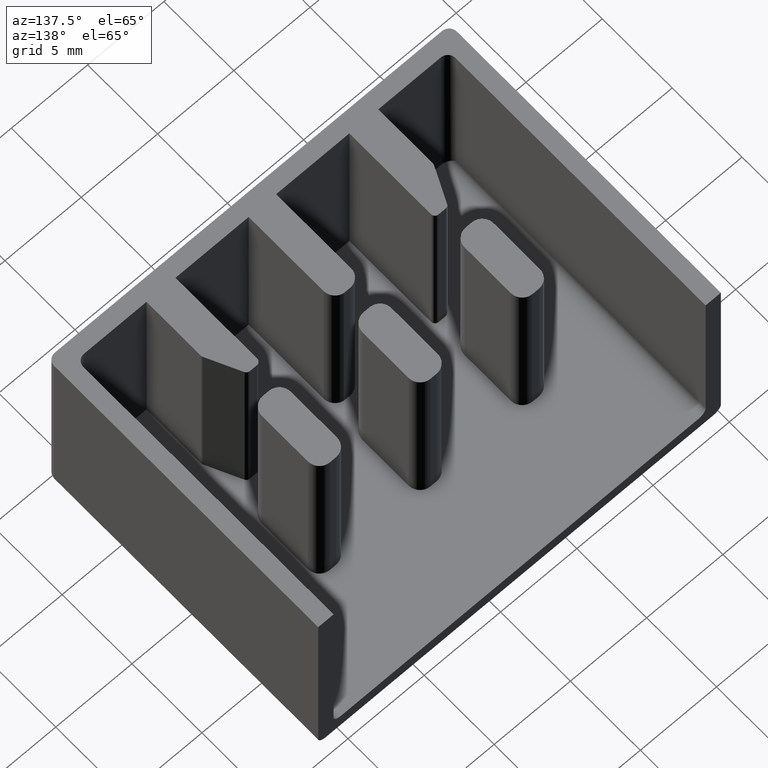
[diagram: clean part render]
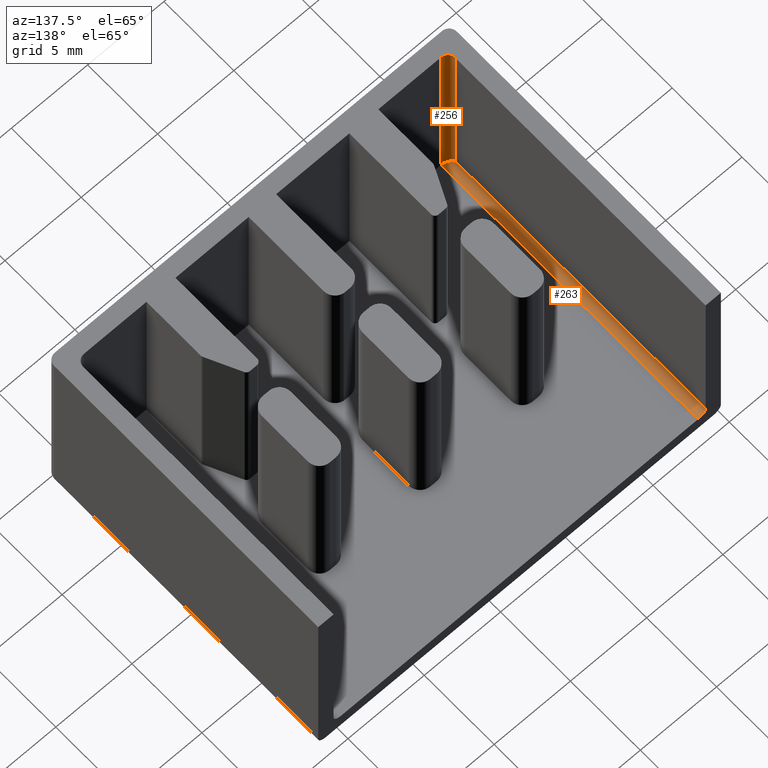
[diagram: same view with one multi-face feature highlighted, each face labeled with its STEP entity id]
A machine part, auxiliary view. The highlighted faces form ONE feature: a constant-radius fillet chain: 2 tangent blend faces with common blend radius 0.5 mm. The faces share edges in the B-rep.
Their STEP definitions:
[1] entity #256 (Cylinder):
#63 = EDGE_CURVE ( 'NONE', #773, #783, #1501, .T. ) ;
#77 = EDGE_CURVE ( 'NONE', #783, #802, #405, .T. ) ;
#110 = EDGE_CURVE ( 'NONE', #817, #773, #1648, .T. ) ;
#145 = EDGE_CURVE ( 'NONE', #802, #817, #685, .T. ) ;
#256 = ADVANCED_FACE ( 'NONE', ( #1948 ), #1925, .F. ) ;
#355 = VECTOR ( 'NONE', #1465, 1000.000000000000000 ) ;
#405 = CIRCLE ( 'NONE', #406, 0.5000000000000000000 ) ;
#406 = AXIS2_PLACEMENT_3D ( 'NONE', #1546, #1548, #1513 ) ;
#434 = VECTOR ( 'NONE', #700, 1000.000000000000000 ) ;
#552 = AXIS2_PLACEMENT_3D ( 'NONE', #1960, #1958, #1934 ) ;
#601 = CARTESIAN_POINT ( 'NONE',  ( 1.000000000000000000, 1.500000000000000000, 1.500000000000000000 ) ) ;
#617 = CARTESIAN_POINT ( 'NONE',  ( 1.207106781186547700, 1.000000000000000900, 1.000000000000000000 ) ) ;
#624 = CARTESIAN_POINT ( 'NONE',  ( 1.000000000000000000, 1.207106781186548300, 1.207106781186547500 ) ) ;
#634 = CARTESIAN_POINT ( 'NONE',  ( 1.500000000000000000, 1.000000000000000900, 1.000000000000000000 ) ) ;
#658 = CARTESIAN_POINT ( 'NONE',  ( 1.000000000000000000, 1.500000000000000000, 0.9999999999999991100 ) ) ;
#685 = LINE ( 'NONE', #658, #434 ) ;
#700 = DIRECTION ( 'NONE',  ( 0.0000000000000000000, 0.0000000000000000000, -1.000000000000000000 ) ) ;
#773 = VERTEX_POINT ( 'NONE', #2021 ) ;
#783 = VERTEX_POINT ( 'NONE', #1963 ) ;
#802 = VERTEX_POINT ( 'NONE', #1969 ) ;
#817 = VERTEX_POINT ( 'NONE', #2039 ) ;
#975 = ORIENTED_EDGE ( 'NONE', *, *, #63, .F. ) ;
#995 = ORIENTED_EDGE ( 'NONE', *, *, #77, .F. ) ;
#1020 = ORIENTED_EDGE ( 'NONE', *, *, #145, .F. ) ;
#1029 = ORIENTED_EDGE ( 'NONE', *, *, #110, .F. ) ;
#1259 = EDGE_LOOP ( 'NONE', ( #995, #975, #1029, #1020 ) ) ;
#1465 = DIRECTION ( 'NONE',  ( -0.0000000000000000000, -0.0000000000000000000, 1.000000000000000000 ) ) ;
#1501 = LINE ( 'NONE', #1506, #355 ) ;
#1506 = CARTESIAN_POINT ( 'NONE',  ( 1.500000000000000000, 1.000000000000000000, 13.30000000000000100 ) ) ;
#1513 = DIRECTION ( 'NONE',  ( -1.000000000000000000, 0.0000000000000000000, 0.0000000000000000000 ) ) ;
#1546 = CARTESIAN_POINT ( 'NONE',  ( 1.500000000000000000, 1.500000000000000000, 13.30000000000000100 ) ) ;
#1548 = DIRECTION ( 'NONE',  ( 0.0000000000000000000, 0.0000000000000000000, -1.000000000000000000 ) ) ;
#1648 =( BOUNDED_CURVE ( )  B_SPLINE_CURVE ( 3, ( #601, #624, #617, #634 ),
 .UNSPECIFIED., .F., .T. ) 
 B_SPLINE_CURVE_WITH_KNOTS ( ( 4, 4 ),
 ( 4.712388980384689700, 6.283185307179586200 ),
 .UNSPECIFIED. ) 
 CURVE ( )  GEOMETRIC_REPRESENTATION_ITEM ( )  RATIONAL_B_SPLINE_CURVE ( ( 1.000000000000000000, 0.8047378541243649400, 0.8047378541243649400, 1.000000000000000000 ) ) 
 REPRESENTATION_ITEM ( '' )  );
#1925 = CYLINDRICAL_SURFACE ( 'NONE', #552, 0.5000000000000000000 ) ;
#1934 = DIRECTION ( 'NONE',  ( 1.000000000000000000, 0.0000000000000000000, 0.0000000000000000000 ) ) ;
#1948 = FACE_OUTER_BOUND ( 'NONE', #1259, .T. ) ;
#1958 = DIRECTION ( 'NONE',  ( 0.0000000000000000000, 0.0000000000000000000, 1.000000000000000000 ) ) ;
#1960 = CARTESIAN_POINT ( 'NONE',  ( 1.500000000000000000, 1.500000000000000000, 13.30000000000000100 ) ) ;
#1963 = CARTESIAN_POINT ( 'NONE',  ( 1.500000000000000000, 1.000000000000000900, 13.30000000000000100 ) ) ;
#1969 = CARTESIAN_POINT ( 'NONE',  ( 1.000000000000000000, 1.500000000000001300, 13.30000000000000100 ) ) ;
#2021 = CARTESIAN_POINT ( 'NONE',  ( 1.500000000000000000, 1.000000000000000900, 1.000000000000000000 ) ) ;
#2039 = CARTESIAN_POINT ( 'NONE',  ( 1.000000000000000000, 1.500000000000000000, 1.500000000000000000 ) ) ;
[2] entity #263 (Cylinder):
#18 = EDGE_CURVE ( 'NONE', #779, #773, #1380, .T. ) ;
#104 = EDGE_CURVE ( 'NONE', #821, #779, #397, .T. ) ;
#110 = EDGE_CURVE ( 'NONE', #817, #773, #1648, .T. ) ;
#159 = EDGE_CURVE ( 'NONE', #817, #821, #2150, .T. ) ;
#263 = ADVANCED_FACE ( 'NONE', ( #1908 ), #1920, .F. ) ;
#278 = VECTOR ( 'NONE', #1355, 1000.000000000000000 ) ;
#359 = AXIS2_PLACEMENT_3D ( 'NONE', #1634, #1632, #1612 ) ;
#397 = CIRCLE ( 'NONE', #359, 0.5000000000000000000 ) ;
#460 = VECTOR ( 'NONE', #2130, 1000.000000000000000 ) ;
#580 = AXIS2_PLACEMENT_3D ( 'NONE', #1928, #1909, #1926 ) ;
#601 = CARTESIAN_POINT ( 'NONE',  ( 1.000000000000000000, 1.500000000000000000, 1.500000000000000000 ) ) ;
#617 = CARTESIAN_POINT ( 'NONE',  ( 1.207106781186547700, 1.000000000000000900, 1.000000000000000000 ) ) ;
#624 = CARTESIAN_POINT ( 'NONE',  ( 1.000000000000000000, 1.207106781186548300, 1.207106781186547500 ) ) ;
#634 = CARTESIAN_POINT ( 'NONE',  ( 1.500000000000000000, 1.000000000000000900, 1.000000000000000000 ) ) ;
#773 = VERTEX_POINT ( 'NONE', #2021 ) ;
#779 = VERTEX_POINT ( 'NONE', #1983 ) ;
#817 = VERTEX_POINT ( 'NONE', #2039 ) ;
#821 = VERTEX_POINT ( 'NONE', #2074 ) ;
#982 = ORIENTED_EDGE ( 'NONE', *, *, #18, .F. ) ;
#1014 = ORIENTED_EDGE ( 'NONE', *, *, #159, .F. ) ;
#1033 = ORIENTED_EDGE ( 'NONE', *, *, #110, .T. ) ;
#1040 = ORIENTED_EDGE ( 'NONE', *, *, #104, .F. ) ;
#1240 = EDGE_LOOP ( 'NONE', ( #1040, #1014, #1033, #982 ) ) ;
#1337 = CARTESIAN_POINT ( 'NONE',  ( 1.500000000000000000, 19.39999999999999900, 1.000000000000000000 ) ) ;
#1355 = DIRECTION ( 'NONE',  ( 0.0000000000000000000, -1.000000000000000000, 0.0000000000000000000 ) ) ;
#1380 = LINE ( 'NONE', #1337, #278 ) ;
#1612 = DIRECTION ( 'NONE',  ( 0.0000000000000000000, 0.0000000000000000000, -1.000000000000000000 ) ) ;
#1632 = DIRECTION ( 'NONE',  ( 0.0000000000000000000, -1.000000000000000000, 0.0000000000000000000 ) ) ;
#1634 = CARTESIAN_POINT ( 'NONE',  ( 1.500000000000000000, 19.39999999999999900, 1.500000000000000000 ) ) ;
#1648 =( BOUNDED_CURVE ( )  B_SPLINE_CURVE ( 3, ( #601, #624, #617, #634 ),
 .UNSPECIFIED., .F., .T. ) 
 B_SPLINE_CURVE_WITH_KNOTS ( ( 4, 4 ),
 ( 4.712388980384689700, 6.283185307179586200 ),
 .UNSPECIFIED. ) 
 CURVE ( )  GEOMETRIC_REPRESENTATION_ITEM ( )  RATIONAL_B_SPLINE_CURVE ( ( 1.000000000000000000, 0.8047378541243649400, 0.8047378541243649400, 1.000000000000000000 ) ) 
 REPRESENTATION_ITEM ( '' )  );
#1908 = FACE_OUTER_BOUND ( 'NONE', #1240, .T. ) ;
#1909 = DIRECTION ( 'NONE',  ( 0.0000000000000000000, -1.000000000000000000, 0.0000000000000000000 ) ) ;
#1920 = CYLINDRICAL_SURFACE ( 'NONE', #580, 0.5000000000000000000 ) ;
#1926 = DIRECTION ( 'NONE',  ( 0.0000000000000000000, 0.0000000000000000000, -1.000000000000000000 ) ) ;
#1928 = CARTESIAN_POINT ( 'NONE',  ( 1.500000000000000000, 19.39999999999999900, 1.500000000000000000 ) ) ;
#1983 = CARTESIAN_POINT ( 'NONE',  ( 1.500000000000000000, 19.39999999999999900, 0.9999999999999991100 ) ) ;
#2021 = CARTESIAN_POINT ( 'NONE',  ( 1.500000000000000000, 1.000000000000000900, 1.000000000000000000 ) ) ;
#2039 = CARTESIAN_POINT ( 'NONE',  ( 1.000000000000000000, 1.500000000000000000, 1.500000000000000000 ) ) ;
#2074 = CARTESIAN_POINT ( 'NONE',  ( 1.000000000000000000, 19.39999999999999900, 1.499999999999999600 ) ) ;
#2130 = DIRECTION ( 'NONE',  ( -0.0000000000000000000, 1.000000000000000000, -0.0000000000000000000 ) ) ;
#2144 = CARTESIAN_POINT ( 'NONE',  ( 1.000000000000000000, 0.0000000000000000000, 1.499999999999999600 ) ) ;
#2150 = LINE ( 'NONE', #2144, #460 ) ;